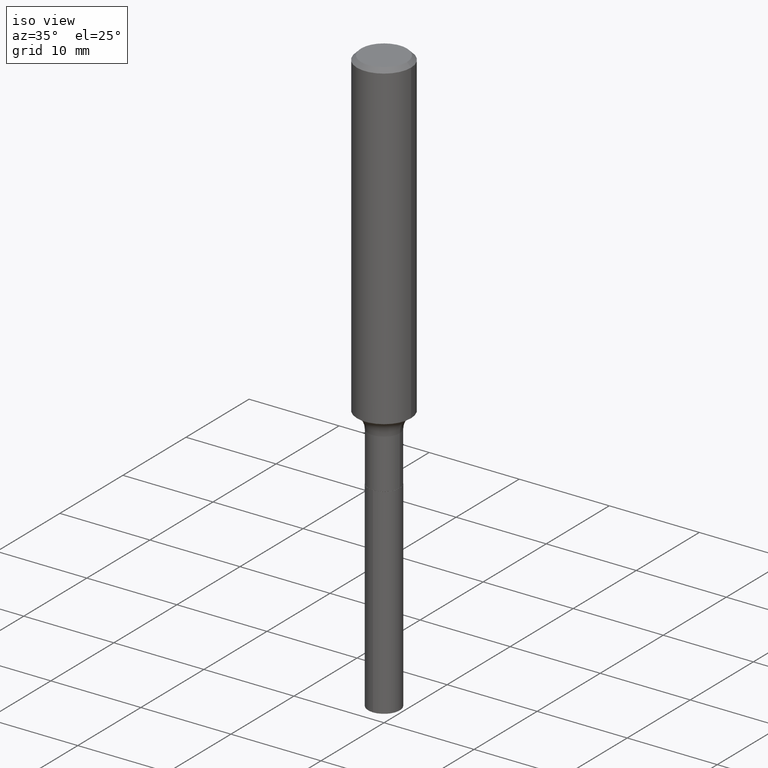
[diagram: clean part render]
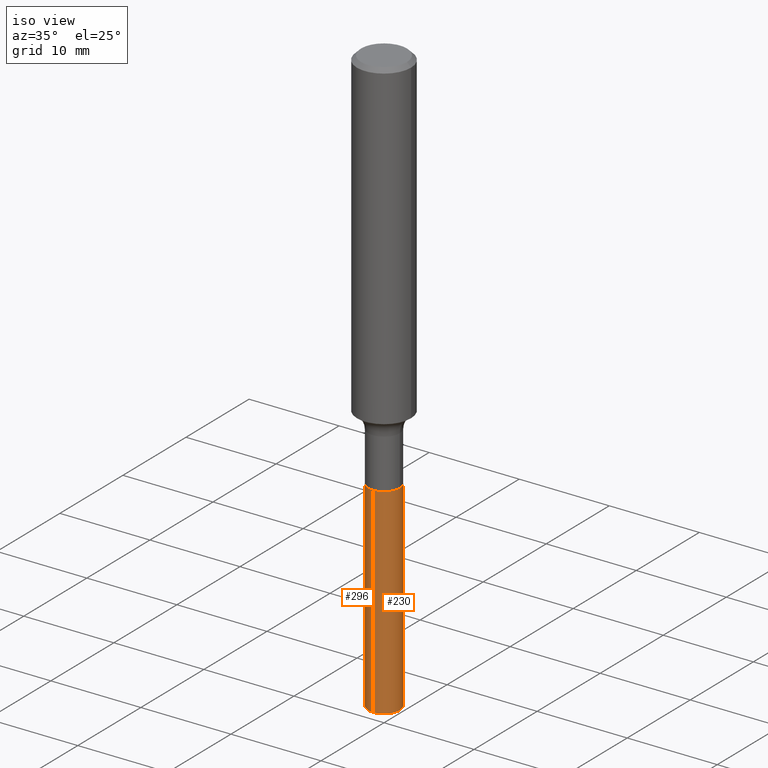
[diagram: same view with one multi-face feature highlighted, each face labeled with its STEP entity id]
A machine part, iso view. The highlighted faces form ONE feature: a constant-radius fillet chain: 2 tangent blend faces with common blend radius 1.7501 mm. The faces share edges in the B-rep.
Their STEP definitions:
[1] entity #296 (Cylinder):
#17 = CARTESIAN_POINT ( 'NONE',  ( 4.895639449387719604E-16, 0.06889999999999105174, -2.570162593039957866 ) ) ;
#37 = CARTESIAN_POINT ( 'NONE',  ( 4.138955954468343780E-29, -5.909332165992023872E-15, -1.692500000000000115 ) ) ;
#50 = EDGE_CURVE ( 'NONE', #468, #383, #250, .T. ) ;
#57 = CARTESIAN_POINT ( 'NONE',  ( -4.811261284925424219E-16, -0.06890000000000591485, -1.692499999999999671 ) ) ;
#64 = DIRECTION ( 'NONE',  ( -2.451878459129800558E-29, 3.482302351011597532E-15, 1.000000000000000000 ) ) ;
#73 = CARTESIAN_POINT ( 'NONE',  ( 6.290877960727020705E-29, -8.965618677130002712E-15, -2.570162593039957866 ) ) ;
#74 = AXIS2_PLACEMENT_3D ( 'NONE', #73, #295, #448 ) ;
#78 = DIRECTION ( 'NONE',  ( -2.451878459129800558E-29, 3.482302351011597138E-15, 1.000000000000000000 ) ) ;
#106 = EDGE_CURVE ( 'NONE', #437, #468, #490, .T. ) ;
#156 = FACE_OUTER_BOUND ( 'NONE', #350, .T. ) ;
#159 = EDGE_CURVE ( 'NONE', #437, #465, #435, .T. ) ;
#163 = LINE ( 'NONE', #322, #223 ) ;
#167 = ORIENTED_EDGE ( 'NONE', *, *, #159, .T. ) ;
#183 = VECTOR ( 'NONE', #64, 39.37007874015748143 ) ;
#223 = VECTOR ( 'NONE', #312, 39.37007874015748143 ) ;
#238 = ORIENTED_EDGE ( 'NONE', *, *, #106, .F. ) ;
#240 = ORIENTED_EDGE ( 'NONE', *, *, #391, .T. ) ;
#250 = CIRCLE ( 'NONE', #341, 0.06890000000000000291 ) ;
#260 = CARTESIAN_POINT ( 'NONE',  ( 4.895639449387503653E-16, 0.06889999999999409097, -1.692500000000000338 ) ) ;
#274 = CARTESIAN_POINT ( 'NONE',  ( -4.811261284925210241E-16, -0.06890000000000898184, -2.570162593039957866 ) ) ;
#277 = AXIS2_PLACEMENT_3D ( 'NONE', #305, #78, #458 ) ;
#282 = CARTESIAN_POINT ( 'NONE',  ( 4.895639449387719604E-16, 0.06889999999999409097, -1.692500000000000338 ) ) ;
#295 = DIRECTION ( 'NONE',  ( -2.451878459129800558E-29, 3.482302351011597138E-15, 1.000000000000000000 ) ) ;
#296 = ADVANCED_FACE ( 'NONE', ( #156 ), #345, .T. ) ;
#298 = DIRECTION ( 'NONE',  ( -6.982962677686265922E-15, -1.000000000000000000, 3.964946289788480896E-15 ) ) ;
#304 = ORIENTED_EDGE ( 'NONE', *, *, #50, .F. ) ;
#305 = CARTESIAN_POINT ( 'NONE',  ( 4.138955954468343780E-29, -5.909332165992023872E-15, -1.692500000000000115 ) ) ;
#312 = DIRECTION ( 'NONE',  ( -2.451878459129800558E-29, 3.482302351011597532E-15, 1.000000000000000000 ) ) ;
#322 = CARTESIAN_POINT ( 'NONE',  ( -4.811261284925423233E-16, -0.06890000000000590097, -1.692499999999999671 ) ) ;
#337 = DIRECTION ( 'NONE',  ( -2.451878459129800558E-29, 3.482302351011597138E-15, 1.000000000000000000 ) ) ;
#341 = AXIS2_PLACEMENT_3D ( 'NONE', #37, #337, #298 ) ;
#345 = CYLINDRICAL_SURFACE ( 'NONE', #277, 0.06890000000000000291 ) ;
#350 = EDGE_LOOP ( 'NONE', ( #238, #167, #240, #304 ) ) ;
#383 = VERTEX_POINT ( 'NONE', #57 ) ;
#391 = EDGE_CURVE ( 'NONE', #465, #383, #163, .T. ) ;
#435 = CIRCLE ( 'NONE', #74, 0.06890000000000000291 ) ;
#437 = VERTEX_POINT ( 'NONE', #17 ) ;
#448 = DIRECTION ( 'NONE',  ( -6.982962677686265922E-15, -1.000000000000000000, 0.000000000000000000 ) ) ;
#458 = DIRECTION ( 'NONE',  ( -6.982962677686265922E-15, -1.000000000000000000, 3.964946289788480896E-15 ) ) ;
#465 = VERTEX_POINT ( 'NONE', #274 ) ;
#468 = VERTEX_POINT ( 'NONE', #282 ) ;
#490 = LINE ( 'NONE', #260, #183 ) ;
[2] entity #230 (Cylinder):
#14 = EDGE_LOOP ( 'NONE', ( #164, #246, #393, #476 ) ) ;
#17 = CARTESIAN_POINT ( 'NONE',  ( 4.895639449387719604E-16, 0.06889999999999105174, -2.570162593039957866 ) ) ;
#55 = CARTESIAN_POINT ( 'NONE',  ( 6.290877960727020705E-29, -8.965618677130002712E-15, -2.570162593039957866 ) ) ;
#57 = CARTESIAN_POINT ( 'NONE',  ( -4.811261284925424219E-16, -0.06890000000000591485, -1.692499999999999671 ) ) ;
#64 = DIRECTION ( 'NONE',  ( -2.451878459129800558E-29, 3.482302351011597532E-15, 1.000000000000000000 ) ) ;
#66 = CARTESIAN_POINT ( 'NONE',  ( 4.138955954468343780E-29, -5.909332165992023872E-15, -1.692500000000000115 ) ) ;
#81 = AXIS2_PLACEMENT_3D ( 'NONE', #66, #218, #329 ) ;
#85 = DIRECTION ( 'NONE',  ( -2.451878459129800558E-29, 3.482302351011597138E-15, 1.000000000000000000 ) ) ;
#104 = CIRCLE ( 'NONE', #207, 0.06890000000000000291 ) ;
#106 = EDGE_CURVE ( 'NONE', #437, #468, #490, .T. ) ;
#163 = LINE ( 'NONE', #322, #223 ) ;
#164 = ORIENTED_EDGE ( 'NONE', *, *, #434, .T. ) ;
#178 = EDGE_CURVE ( 'NONE', #383, #468, #446, .T. ) ;
#183 = VECTOR ( 'NONE', #64, 39.37007874015748143 ) ;
#189 = CYLINDRICAL_SURFACE ( 'NONE', #334, 0.06890000000000000291 ) ;
#198 = DIRECTION ( 'NONE',  ( -2.451878459129800558E-29, 3.482302351011597138E-15, 1.000000000000000000 ) ) ;
#205 = DIRECTION ( 'NONE',  ( -6.982962677686265922E-15, -1.000000000000000000, 0.000000000000000000 ) ) ;
#207 = AXIS2_PLACEMENT_3D ( 'NONE', #55, #198, #205 ) ;
#218 = DIRECTION ( 'NONE',  ( -2.451878459129800558E-29, 3.482302351011597138E-15, 1.000000000000000000 ) ) ;
#223 = VECTOR ( 'NONE', #312, 39.37007874015748143 ) ;
#230 = ADVANCED_FACE ( 'NONE', ( #232 ), #189, .T. ) ;
#232 = FACE_OUTER_BOUND ( 'NONE', #14, .T. ) ;
#246 = ORIENTED_EDGE ( 'NONE', *, *, #106, .T. ) ;
#260 = CARTESIAN_POINT ( 'NONE',  ( 4.895639449387503653E-16, 0.06889999999999409097, -1.692500000000000338 ) ) ;
#263 = CARTESIAN_POINT ( 'NONE',  ( 4.138955954468343780E-29, -5.909332165992023872E-15, -1.692500000000000115 ) ) ;
#274 = CARTESIAN_POINT ( 'NONE',  ( -4.811261284925210241E-16, -0.06890000000000898184, -2.570162593039957866 ) ) ;
#282 = CARTESIAN_POINT ( 'NONE',  ( 4.895639449387719604E-16, 0.06889999999999409097, -1.692500000000000338 ) ) ;
#312 = DIRECTION ( 'NONE',  ( -2.451878459129800558E-29, 3.482302351011597532E-15, 1.000000000000000000 ) ) ;
#322 = CARTESIAN_POINT ( 'NONE',  ( -4.811261284925423233E-16, -0.06890000000000590097, -1.692499999999999671 ) ) ;
#329 = DIRECTION ( 'NONE',  ( -6.982962677686265922E-15, -1.000000000000000000, 3.964946289788480896E-15 ) ) ;
#334 = AXIS2_PLACEMENT_3D ( 'NONE', #263, #85, #453 ) ;
#383 = VERTEX_POINT ( 'NONE', #57 ) ;
#391 = EDGE_CURVE ( 'NONE', #465, #383, #163, .T. ) ;
#393 = ORIENTED_EDGE ( 'NONE', *, *, #178, .F. ) ;
#434 = EDGE_CURVE ( 'NONE', #465, #437, #104, .T. ) ;
#437 = VERTEX_POINT ( 'NONE', #17 ) ;
#446 = CIRCLE ( 'NONE', #81, 0.06890000000000000291 ) ;
#453 = DIRECTION ( 'NONE',  ( -6.982962677686265922E-15, -1.000000000000000000, 3.964946289788480896E-15 ) ) ;
#465 = VERTEX_POINT ( 'NONE', #274 ) ;
#468 = VERTEX_POINT ( 'NONE', #282 ) ;
#476 = ORIENTED_EDGE ( 'NONE', *, *, #391, .F. ) ;
#490 = LINE ( 'NONE', #260, #183 ) ;